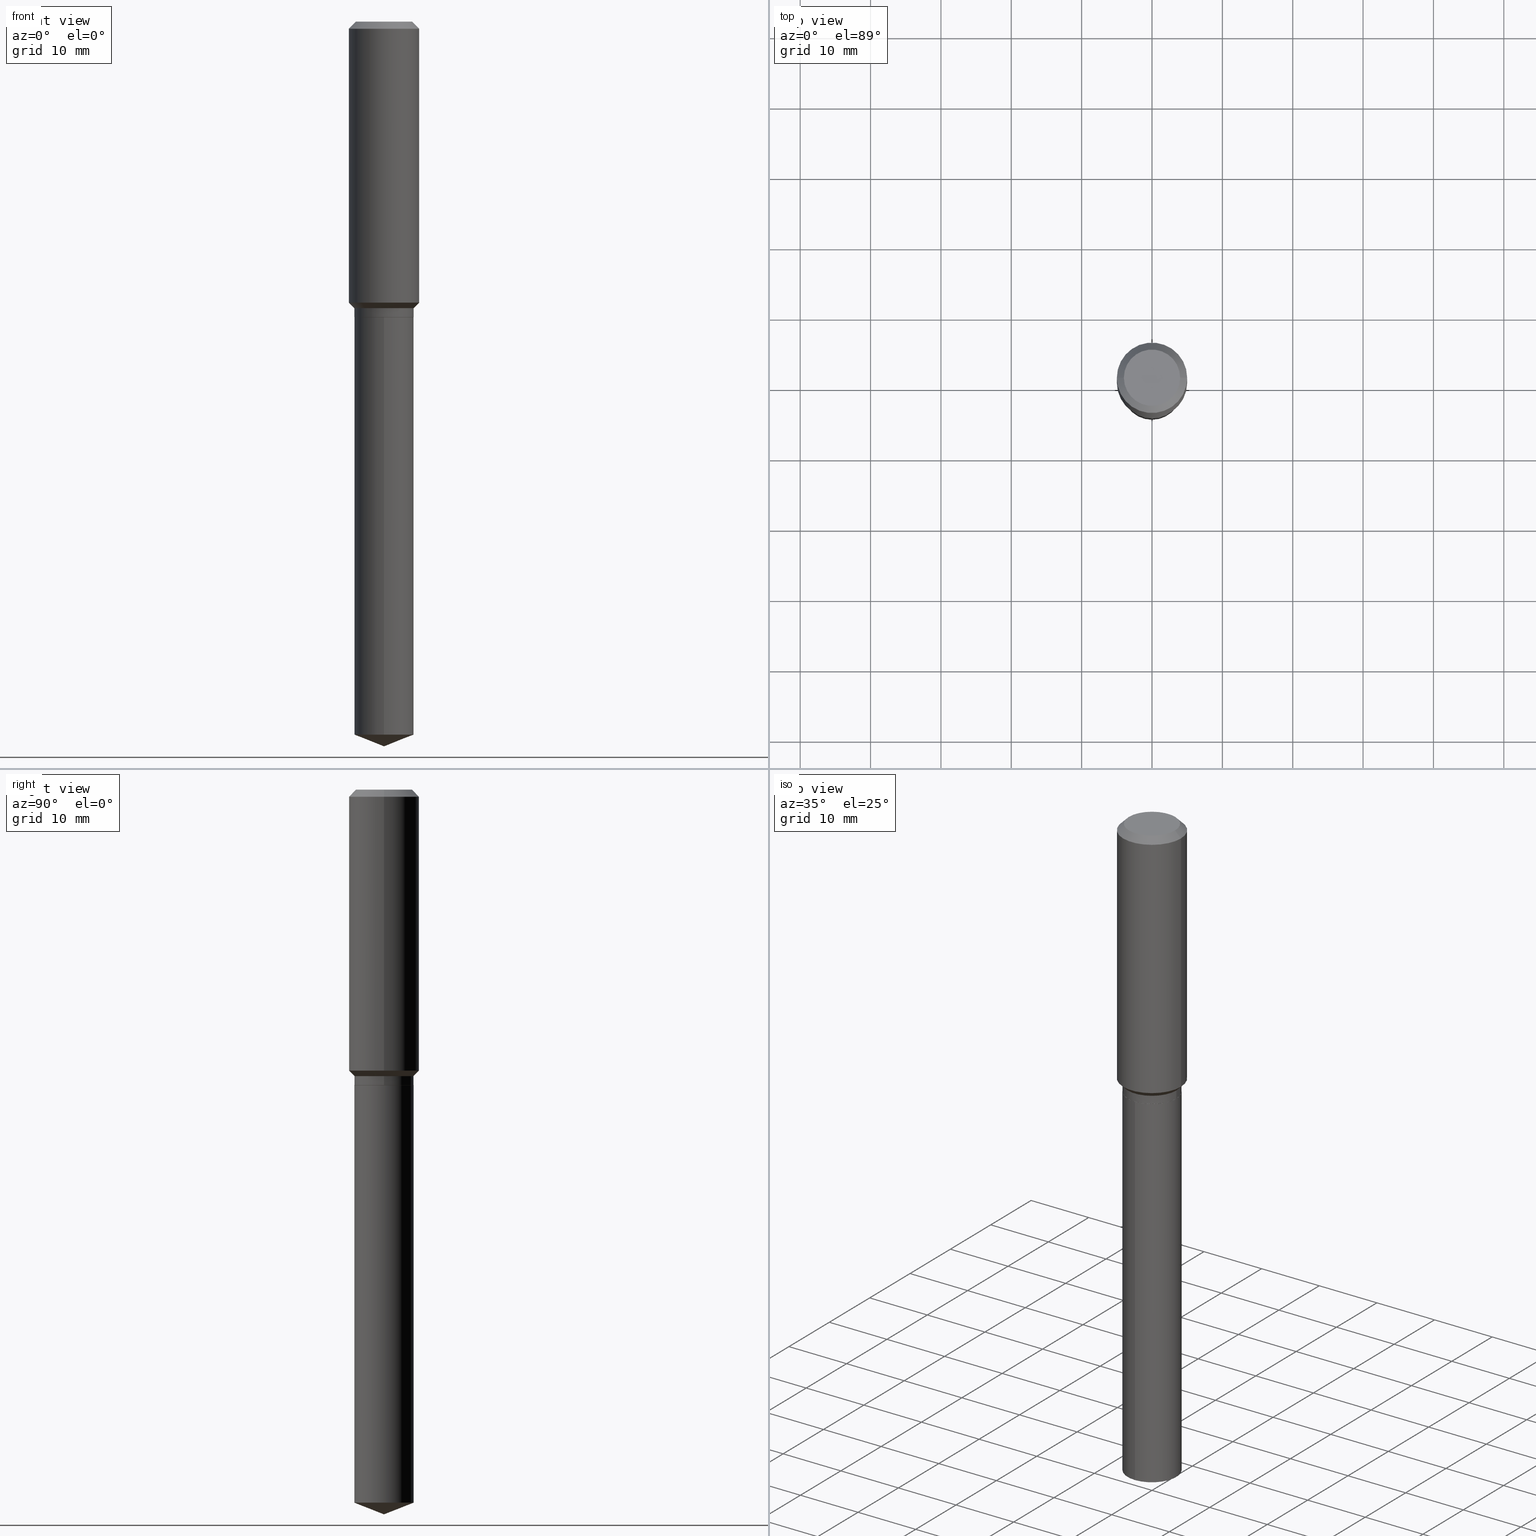
[diagram: canonical four-view strip — front | top / right | iso, engineering-drawing reading convention]
A machine part, canonical four-view strip (front | top / right | iso — engineering-drawing reading convention). The complete STEP part file that produces these views, byte-faithful:
ISO-10303-21;
HEADER;
FILE_DESCRIPTION (( 'STEP AP203' ),
    '1' );
FILE_NAME ('56453.STEP',
    '2024-04-24T18:00:01',
    ( '' ),
    ( '' ),
    'SwSTEP 2.0',
    'SolidWorks 2023',
    '' );
FILE_SCHEMA (( 'CONFIG_CONTROL_DESIGN' ));
ENDSEC;

DATA;
#1 = DIRECTION ( 'NONE',  ( 1.000000000000000000, -6.982962677686265133E-15, 0.000000000000000000 ) ) ;
#2 = AXIS2_PLACEMENT_3D ( 'NONE', #102, #249, #408 ) ;
#3 = AXIS2_PLACEMENT_3D ( 'NONE', #392, #313, #397 ) ;
#4 = COORDINATED_UNIVERSAL_TIME_OFFSET ( 5, 0, .BEHIND. ) ;
#5 = FACE_OUTER_BOUND ( 'NONE', #363, .T. ) ;
#6 = EDGE_CURVE ( 'NONE', #180, #375, #241, .T. ) ;
#7 = PERSON_AND_ORGANIZATION ( #345, #96 ) ;
#8 = FACE_OUTER_BOUND ( 'NONE', #165, .T. ) ;
#9 = DIRECTION ( 'NONE',  ( -2.445468806185136597E-29, 3.491481338843145583E-15, 1.000000000000000000 ) ) ;
#10 = AXIS2_PLACEMENT_3D ( 'NONE', #237, #12, #307 ) ;
#11 = PERSON_AND_ORGANIZATION ( #345, #96 ) ;
#12 = DIRECTION ( 'NONE',  ( -2.445468806185136597E-29, 3.491481338843145583E-15, 1.000000000000000000 ) ) ;
#13 = ORIENTED_EDGE ( 'NONE', *, *, #260, .F. ) ;
#14 = ADVANCED_FACE ( 'NONE', ( #183 ), #447, .F. ) ;
#15 = CARTESIAN_POINT ( 'NONE',  ( 0.1968500000000002192, -6.864426886232561212E-15, -1.572349999999999692 ) ) ;
#16 = FACE_OUTER_BOUND ( 'NONE', #238, .T. ) ;
#17 = EDGE_CURVE ( 'NONE', #94, #472, #143, .T. ) ;
#18 = EDGE_LOOP ( 'NONE', ( #56, #413, #437 ) ) ;
#19 = CONICAL_SURFACE ( 'NONE', #288, 0.1968500000000000527, 0.7853981633974453924 ) ;
#20 = LOCAL_TIME ( 14, 0, 1.000000000000000000, #381 ) ;
#21 = CARTESIAN_POINT ( 'NONE',  ( 4.042115389743411055E-29, -5.771069504973833690E-15, -1.652899999999999814 ) ) ;
#22 = ORIENTED_EDGE ( 'NONE', *, *, #214, .T. ) ;
#23 = EDGE_CURVE ( 'NONE', #472, #216, #147, .T. ) ;
#24 = DIRECTION ( 'NONE',  ( -2.445468806185136877E-29, 3.491481338843145188E-15, 1.000000000000000000 ) ) ;
#25 = ORIENTED_EDGE ( 'NONE', *, *, #260, .T. ) ;
#26 = EDGE_LOOP ( 'NONE', ( #98, #137, #311, #202 ) ) ;
#27 = EDGE_CURVE ( 'NONE', #472, #94, #338, .T. ) ;
#28 = CC_DESIGN_APPROVAL ( #428, ( #135 ) ) ;
#29 = CARTESIAN_POINT ( 'NONE',  ( 4.043338124146504977E-29, -5.772815245643255982E-15, -1.653399999999999981 ) ) ;
#30 = VERTEX_POINT ( 'NONE', #451 ) ;
#31 = ORIENTED_EDGE ( 'NONE', *, *, #465, .T. ) ;
#32 = VERTEX_POINT ( 'NONE', #245 ) ;
#33 = VECTOR ( 'NONE', #299, 39.37007874015748143 ) ;
#34 = VERTEX_POINT ( 'NONE', #62 ) ;
#35 = DIRECTION ( 'NONE',  ( 1.000000000000000000, -6.982962677686265133E-15, 0.000000000000000000 ) ) ;
#36 = LINE ( 'NONE', #189, #72 ) ;
#37 = CALENDAR_DATE ( 2024, 24, 4 ) ;
#38 = EDGE_CURVE ( 'NONE', #70, #375, #287, .T. ) ;
#39 = DIRECTION ( 'NONE',  ( -2.445540233102860963E-29, 3.491379051431596489E-15, 1.000000000000000000 ) ) ;
#40 = CIRCLE ( 'NONE', #430, 0.1660000000000000087 ) ;
#41 = AXIS2_PLACEMENT_3D ( 'NONE', #173, #442, #253 ) ;
#42 = COORDINATED_UNIVERSAL_TIME_OFFSET ( 5, 0, .BEHIND. ) ;
#43 = DIRECTION ( 'NONE',  ( -0.7071067811864026886, 7.493145998869830357E-15, 0.7071067811866923458 ) ) ;
#44 = FACE_OUTER_BOUND ( 'NONE', #479, .T. ) ;
#45 = APPROVAL_ROLE ( '' ) ;
#46 = DIRECTION ( 'NONE',  ( 1.000000000000000000, -6.982962677686265922E-15, 4.876223630392693006E-29 ) ) ;
#47 = EDGE_LOOP ( 'NONE', ( #440, #236, #291, #276 ) ) ;
#48 = CIRCLE ( 'NONE', #322, 0.1655000000000000082 ) ;
#49 = VECTOR ( 'NONE', #272, 39.37007874015748143 ) ;
#50 = DIRECTION ( 'NONE',  ( -2.445540233102860963E-29, 3.491379051431596489E-15, 1.000000000000000000 ) ) ;
#51 = VERTEX_POINT ( 'NONE', #247 ) ;
#52 = FACE_OUTER_BOUND ( 'NONE', #26, .T. ) ;
#53 = ORIENTED_EDGE ( 'NONE', *, *, #192, .F. ) ;
#54 = CARTESIAN_POINT ( 'NONE',  ( 1.179500941361863992E-15, 0.1659999999999860754, -3.989610861047919954 ) ) ;
#55 = PRODUCT_DEFINITION ( 'UNKNOWN', '', #135, #330 ) ;
#56 = ORIENTED_EDGE ( 'NONE', *, *, #403, .F. ) ;
#57 = CONICAL_SURFACE ( 'NONE', #95, 0.1660000000000000087, 0.7853981633974510546 ) ;
#58 = CC_DESIGN_SECURITY_CLASSIFICATION ( #204, ( #135 ) ) ;
#59 = DIRECTION ( 'NONE',  ( 1.000000000000000000, -6.982962677686266711E-15, 4.876176775795935793E-29 ) ) ;
#60 = ORIENTED_EDGE ( 'NONE', *, *, #38, .F. ) ;
#61 = FACE_OUTER_BOUND ( 'NONE', #18, .T. ) ;
#62 = CARTESIAN_POINT ( 'NONE',  ( 0.1659999999999999809, -6.930241309469754658E-15, -1.652899999999999814 ) ) ;
#63 = EDGE_CURVE ( 'NONE', #308, #123, #443, .T. ) ;
#64 = DIRECTION ( 'NONE',  ( -2.445468806185136597E-29, 3.491481338843145583E-15, 1.000000000000000000 ) ) ;
#65 = ORIENTED_EDGE ( 'NONE', *, *, #214, .F. ) ;
#66 = AXIS2_PLACEMENT_3D ( 'NONE', #378, #9, #35 ) ;
#67 = AXIS2_PLACEMENT_3D ( 'NONE', #446, #325, #105 ) ;
#68 =( NAMED_UNIT ( * ) SI_UNIT ( $, .STERADIAN. ) SOLID_ANGLE_UNIT ( ) );
#69 = DIRECTION ( 'NONE',  ( -2.445468806185136597E-29, 3.491481338843145583E-15, 1.000000000000000000 ) ) ;
#70 = VERTEX_POINT ( 'NONE', #255 ) ;
#71 = ORIENTED_EDGE ( 'NONE', *, *, #292, .F. ) ;
#72 = VECTOR ( 'NONE', #191, 39.37007874015748143 ) ;
#73 = CONICAL_SURFACE ( 'NONE', #438, 0.1968500000000000527, 0.7853981633974453924 ) ;
#74 = CARTESIAN_POINT ( 'NONE',  ( 1.179500941361806799E-15, 0.1659999999999942355, -1.653400000000000203 ) ) ;
#75 = DIRECTION ( 'NONE',  ( -2.445540233102860683E-29, 3.491379051431596884E-15, 1.000000000000000000 ) ) ;
#76 = EDGE_CURVE ( 'NONE', #51, #32, #48, .T. ) ;
#77 = DIRECTION ( 'NONE',  ( -2.445468806185136597E-29, 3.491481338843145583E-15, 1.000000000000000000 ) ) ;
#78 = PERSON_AND_ORGANIZATION_ROLE ( 'creator' ) ;
#79 = LINE ( 'NONE', #416, #212 ) ;
#80 = CLOSED_SHELL ( 'NONE', ( #356, #489, #224, #336, #156 ) ) ;
#81 = LOCAL_TIME ( 14, 0, 1.000000000000000000, #42 ) ;
#82 = DIRECTION ( 'NONE',  ( 1.000000000000000000, -6.982962677686266711E-15, 4.876176775795935793E-29 ) ) ;
#83 = DIRECTION ( 'NONE',  ( -1.000000000000000000, 6.982962677686266711E-15, 0.000000000000000000 ) ) ;
#84 = EDGE_CURVE ( 'NONE', #216, #375, #36, .T. ) ;
#85 = APPROVAL_ROLE ( '' ) ;
#86 = FACE_OUTER_BOUND ( 'NONE', #427, .T. ) ;
#87 = ORIENTED_EDGE ( 'NONE', *, *, #185, .F. ) ;
#88 = AXIS2_PLACEMENT_3D ( 'NONE', #117, #77, #82 ) ;
#89 = FACE_OUTER_BOUND ( 'NONE', #320, .T. ) ;
#90 = EDGE_CURVE ( 'NONE', #92, #180, #79, .T. ) ;
#91 = DIRECTION ( 'NONE',  ( -2.445540233102860963E-29, 3.491379051431596489E-15, 1.000000000000000000 ) ) ;
#92 = VERTEX_POINT ( 'NONE', #186 ) ;
#93 = DIRECTION ( 'NONE',  ( -2.445468806185136597E-29, 3.491481338843145583E-15, 1.000000000000000000 ) ) ;
#94 = VERTEX_POINT ( 'NONE', #454 ) ;
#95 = AXIS2_PLACEMENT_3D ( 'NONE', #115, #152, #261 ) ;
#96 = ORGANIZATION ( 'UNSPECIFIED', 'UNSPECIFIED', '' ) ;
#97 = DIRECTION ( 'NONE',  ( 1.000000000000000000, -6.982962677686269077E-15, 0.000000000000000000 ) ) ;
#98 = ORIENTED_EDGE ( 'NONE', *, *, #90, .F. ) ;
#99 = APPLICATION_PROTOCOL_DEFINITION ( 'international standard', 'config_control_design', 1994, #101 ) ;
#100 = DIRECTION ( 'NONE',  ( 1.000000000000000000, -6.982962677686266711E-15, 0.000000000000000000 ) ) ;
#101 = APPLICATION_CONTEXT ( 'configuration controlled 3d designs of mechanical parts and assemblies' ) ;
#102 = CARTESIAN_POINT ( 'NONE',  ( 3.920575590076010242E-29, -5.597542882433329924E-15, -1.603199999999999736 ) ) ;
#103 = EDGE_CURVE ( 'NONE', #396, #171, #414, .T. ) ;
#104 = CIRCLE ( 'NONE', #407, 0.1968500000000000527 ) ;
#105 = DIRECTION ( 'NONE',  ( 1.000000000000000000, -6.982962677686265922E-15, 4.876223630392693006E-29 ) ) ;
#106 = ORIENTED_EDGE ( 'NONE', *, *, #326, .F. ) ;
#107 = LINE ( 'NONE', #475, #167 ) ;
#108 = ORIENTED_EDGE ( 'NONE', *, *, #84, .F. ) ;
#109 = CARTESIAN_POINT ( 'NONE',  ( 0.000000000000000000, 0.000000000000000000, 0.000000000000000000 ) ) ;
#110 = AXIS2_PLACEMENT_3D ( 'NONE', #464, #93, #426 ) ;
#111 = DIRECTION ( 'NONE',  ( -2.445540233102860963E-29, 3.491379051431596489E-15, 1.000000000000000000 ) ) ;
#112 = EDGE_CURVE ( 'NONE', #279, #180, #457, .T. ) ;
#113 = DIRECTION ( 'NONE',  ( 6.982962677686265922E-15, 1.000000000000000000, -3.491379051431596884E-15 ) ) ;
#114 = DATE_AND_TIME ( #116, #144 ) ;
#115 = CARTESIAN_POINT ( 'NONE',  ( 3.920575590076010242E-29, -5.597542882433329924E-15, -1.603199999999999736 ) ) ;
#116 = CALENDAR_DATE ( 2024, 24, 4 ) ;
#117 = CARTESIAN_POINT ( 'NONE',  ( 0.000000000000000000, 0.000000000000000000, 0.000000000000000000 ) ) ;
#118 = DATE_AND_TIME ( #193, #213 ) ;
#119 = CC_DESIGN_PERSON_AND_ORGANIZATION_ASSIGNMENT ( #348, #298, ( #135 ) ) ;
#120 = CYLINDRICAL_SURFACE ( 'NONE', #257, 0.1660000000000000087 ) ;
#121 = APPROVAL_DATE_TIME ( #114, #277 ) ;
#122 = DIRECTION ( 'NONE',  ( -2.445468806185136597E-29, 3.491481338843145583E-15, 1.000000000000000000 ) ) ;
#123 = VERTEX_POINT ( 'NONE', #264 ) ;
#124 = CARTESIAN_POINT ( 'NONE',  ( 4.043338124146503856E-29, -5.772815245643255193E-15, -1.653399999999999537 ) ) ;
#125 = ORIENTED_EDGE ( 'NONE', *, *, #63, .F. ) ;
#126 = ADVANCED_FACE ( 'NONE', ( #194 ), #57, .T. ) ;
#127 = AXIS2_PLACEMENT_3D ( 'NONE', #355, #239, #163 ) ;
#128 = ADVANCED_BREP_SHAPE_REPRESENTATION ( '56453', ( #420, #441, #263 ), #487 ) ;
#129 = DIRECTION ( 'NONE',  ( -2.445468806185136597E-29, 3.491481338843145583E-15, 1.000000000000000000 ) ) ;
#130 = ORIENTED_EDGE ( 'NONE', *, *, #172, .F. ) ;
#131 = DIRECTION ( 'NONE',  ( -6.982962677686266711E-15, -1.000000000000000000, 3.291383124896702687E-15 ) ) ;
#132 = ORIENTED_EDGE ( 'NONE', *, *, #76, .F. ) ;
#133 = FACE_OUTER_BOUND ( 'NONE', #361, .T. ) ;
#134 = ORIENTED_EDGE ( 'NONE', *, *, #409, .F. ) ;
#135 = PRODUCT_DEFINITION_FORMATION_WITH_SPECIFIED_SOURCE ( 'ANY', '', #227, .NOT_KNOWN. ) ;
#136 = DIRECTION ( 'NONE',  ( 1.000000000000000000, 0.000000000000000000, 0.000000000000000000 ) ) ;
#137 = ORIENTED_EDGE ( 'NONE', *, *, #370, .F. ) ;
#138 = FACE_OUTER_BOUND ( 'NONE', #374, .T. ) ;
#139 = ORIENTED_EDGE ( 'NONE', *, *, #6, .F. ) ;
#140 = CARTESIAN_POINT ( 'NONE',  ( -0.1660000000000000087, -4.504805252341815634E-15, -1.603199999999999736 ) ) ;
#141 = ORIENTED_EDGE ( 'NONE', *, *, #6, .T. ) ;
#142 = CC_DESIGN_PERSON_AND_ORGANIZATION_ASSIGNMENT ( #246, #485, ( #227 ) ) ;
#143 = CIRCLE ( 'NONE', #2, 0.1660000000000000087 ) ;
#144 = LOCAL_TIME ( 14, 0, 1.000000000000000000, #230 ) ;
#145 = APPLICATION_PROTOCOL_DEFINITION ( 'international standard', 'config_control_design', 1994, #424 ) ;
#146 = CARTESIAN_POINT ( 'NONE',  ( -0.1660000000000000087, -4.418041941071563357E-15, -1.603199999999999736 ) ) ;
#147 = LINE ( 'NONE', #146, #203 ) ;
#148 = ADVANCED_FACE ( 'NONE', ( #8 ), #341, .T. ) ;
#149 = DIRECTION ( 'NONE',  ( 0.7071067811865493491, -2.468850131082277177E-15, 0.7071067811865454633 ) ) ;
#150 = AXIS2_PLACEMENT_3D ( 'NONE', #158, #111, #304 ) ;
#151 = CC_DESIGN_APPROVAL ( #306, ( #55 ) ) ;
#152 = DIRECTION ( 'NONE',  ( -2.445468806185136597E-29, 3.491481338843145583E-15, 1.000000000000000000 ) ) ;
#153 = APPROVAL_DATE_TIME ( #118, #428 ) ;
#154 = CARTESIAN_POINT ( 'NONE',  ( 1.179500941361864189E-15, 0.1659999999999942355, -1.653400000000000203 ) ) ;
#155 = CARTESIAN_POINT ( 'NONE',  ( 4.043338124146503856E-29, -5.772815245643255193E-15, -1.653399999999999537 ) ) ;
#156 = ADVANCED_FACE ( 'NONE', ( #5 ), #258, .F. ) ;
#157 = AXIS2_PLACEMENT_3D ( 'NONE', #109, #335, #419 ) ;
#158 = CARTESIAN_POINT ( 'NONE',  ( 9.756635777851070413E-29, -1.392941290563293579E-14, -3.989610861047919510 ) ) ;
#159 = PRODUCT_DEFINITION_SHAPE ( 'NONE', 'NONE',  #55 ) ;
#160 = CALENDAR_DATE ( 2024, 24, 4 ) ;
#161 = CARTESIAN_POINT ( 'NONE',  ( -0.1968500000000000527, -1.414941776376378819E-15, -0.03937000000000027283 ) ) ;
#162 = ORIENTED_EDGE ( 'NONE', *, *, #379, .F. ) ;
#163 = DIRECTION ( 'NONE',  ( 1.000000000000000000, -6.982962677686268288E-15, 0.000000000000000000 ) ) ;
#164 = PRODUCT_RELATED_PRODUCT_CATEGORY ( 'detail', '', ( #227 ) ) ;
#165 = EDGE_LOOP ( 'NONE', ( #206, #217, #318, #215 ) ) ;
#166 = CARTESIAN_POINT ( 'NONE',  ( 4.043338124146503856E-29, -5.772815245643255193E-15, -1.653399999999999537 ) ) ;
#167 = VECTOR ( 'NONE', #210, 39.37007874015748143 ) ;
#168 = LINE ( 'NONE', #395, #281 ) ;
#169 = ORIENTED_EDGE ( 'NONE', *, *, #103, .T. ) ;
#170 = CARTESIAN_POINT ( 'NONE',  ( 9.916667716379337497E-29, -1.415754205355512367E-14, -4.054999999999999716 ) ) ;
#171 = VERTEX_POINT ( 'NONE', #154 ) ;
#172 = EDGE_CURVE ( 'NONE', #375, #180, #104, .T. ) ;
#173 = CARTESIAN_POINT ( 'NONE',  ( 0.000000000000000000, 0.000000000000000000, 0.000000000000000000 ) ) ;
#174 = ORIENTED_EDGE ( 'NONE', *, *, #23, .T. ) ;
#175 = CLOSED_SHELL ( 'NONE', ( #481, #297, #333, #316, #207, #148, #126, #458, #388, #445, #14, #178 ) ) ;
#176 = ORIENTED_EDGE ( 'NONE', *, *, #292, .T. ) ;
#177 = CARTESIAN_POINT ( 'NONE',  ( 9.916665645232101661E-29, -1.415754205355512367E-14, -4.054999999999999716 ) ) ;
#178 = ADVANCED_FACE ( 'NONE', ( #259 ), #399, .T. ) ;
#179 = DIRECTION ( 'NONE',  ( 1.000000000000000000, -6.982962677686265922E-15, 4.876176775795935793E-29 ) ) ;
#180 = VERTEX_POINT ( 'NONE', #296 ) ;
#181 = CONICAL_SURFACE ( 'NONE', #461, 99.94676754583913691, 1.195550537616116626 ) ;
#182 = AXIS2_PLACEMENT_3D ( 'NONE', #319, #406, #284 ) ;
#183 = FACE_OUTER_BOUND ( 'NONE', #211, .T. ) ;
#184 = LINE ( 'NONE', #423, #187 ) ;
#185 = EDGE_CURVE ( 'NONE', #51, #30, #490, .T. ) ;
#186 = CARTESIAN_POINT ( 'NONE',  ( 0.1574800000000000089, -1.284169937930321386E-15, 3.855188123724205385E-18 ) ) ;
#187 = VECTOR ( 'NONE', #418, 39.37007874015748143 ) ;
#188 = AXIS2_PLACEMENT_3D ( 'NONE', #432, #129, #46 ) ;
#189 = CARTESIAN_POINT ( 'NONE',  ( -0.1968500000000001082, 1.398703375343757985E-15, -9.682923725166787881E-30 ) ) ;
#190 = DATE_AND_TIME ( #160, #81 ) ;
#191 = DIRECTION ( 'NONE',  ( -2.445468806185136877E-29, 3.491481338843145188E-15, 1.000000000000000000 ) ) ;
#192 = EDGE_CURVE ( 'NONE', #32, #34, #184, .T. ) ;
#193 = CALENDAR_DATE ( 2024, 24, 4 ) ;
#194 = FACE_OUTER_BOUND ( 'NONE', #411, .T. ) ;
#195 = CARTESIAN_POINT ( 'NONE',  ( 0.1660000000000000087, -1.159171804495920377E-15, 8.094453447821253584E-30 ) ) ;
#196 = APPROVAL_PERSON_ORGANIZATION ( #7, #277, #45 ) ;
#197 = DIRECTION ( 'NONE',  ( -2.445540233102860963E-29, 3.491379051431596489E-15, 1.000000000000000000 ) ) ;
#198 = ORIENTED_EDGE ( 'NONE', *, *, #465, .F. ) ;
#199 = DIRECTION ( 'NONE',  ( -6.982962677686266711E-15, -1.000000000000000000, 3.291383124896702687E-15 ) ) ;
#200 = ORIENTED_EDGE ( 'NONE', *, *, #417, .F. ) ;
#201 = DIRECTION ( 'NONE',  ( -6.497071151882111948E-15, -0.9304175679820234635, 0.3665012267242997446 ) ) ;
#202 = ORIENTED_EDGE ( 'NONE', *, *, #172, .T. ) ;
#203 = VECTOR ( 'NONE', #252, 39.37007874015748854 ) ;
#204 = SECURITY_CLASSIFICATION ( '', '', #421 ) ;
#205 = CARTESIAN_POINT ( 'NONE',  ( -1.159171804495822755E-15, -0.1660000000000139420, -3.989610861047919066 ) ) ;
#206 = ORIENTED_EDGE ( 'NONE', *, *, #455, .F. ) ;
#207 = ADVANCED_FACE ( 'NONE', ( #222 ), #460, .T. ) ;
#208 = CARTESIAN_POINT ( 'NONE',  ( -0.1968500000000000527, 1.237136582792286422E-15, -0.03937000000000027283 ) ) ;
#209 = DIMENSIONAL_EXPONENTS ( 1.000000000000000000, 0.000000000000000000, 0.000000000000000000, 0.000000000000000000, 0.000000000000000000, 0.000000000000000000, 0.000000000000000000 ) ;
#210 = DIRECTION ( 'NONE',  ( -2.445468806185136877E-29, 3.491481338843145188E-15, 1.000000000000000000 ) ) ;
#211 = EDGE_LOOP ( 'NONE', ( #106, #132 ) ) ;
#212 = VECTOR ( 'NONE', #343, 39.37007874015748143 ) ;
#213 = LOCAL_TIME ( 14, 0, 1.000000000000000000, #4 ) ;
#214 = EDGE_CURVE ( 'NONE', #94, #279, #382, .T. ) ;
#215 = ORIENTED_EDGE ( 'NONE', *, *, #27, .F. ) ;
#216 = VERTEX_POINT ( 'NONE', #380 ) ;
#217 = ORIENTED_EDGE ( 'NONE', *, *, #409, .T. ) ;
#218 = VECTOR ( 'NONE', #24, 39.37007874015748143 ) ;
#219 = DIRECTION ( 'NONE',  ( 2.445540233102860402E-29, -3.491379051431596884E-15, -1.000000000000000000 ) ) ;
#220 = CARTESIAN_POINT ( 'NONE',  ( 9.627810689950950651E-31, -1.374596203102555808E-16, -0.03937000000000027283 ) ) ;
#221 = DIRECTION ( 'NONE',  ( -2.445540233102860963E-29, 3.491379051431596489E-15, 1.000000000000000000 ) ) ;
#222 = FACE_OUTER_BOUND ( 'NONE', #47, .T. ) ;
#223 = PERSON_AND_ORGANIZATION ( #345, #96 ) ;
#224 = ADVANCED_FACE ( 'NONE', ( #44 ), #181, .T. ) ;
#225 = APPROVAL_PERSON_ORGANIZATION ( #290, #306, #404 ) ;
#226 = DIRECTION ( 'NONE',  ( -2.445468806185136597E-29, 3.491481338843145583E-15, 1.000000000000000000 ) ) ;
#227 = PRODUCT ( '56453', '56453', '', ( #372 ) ) ;
#228 = DIRECTION ( 'NONE',  ( -6.982962677686265922E-15, -1.000000000000000000, 3.498627837350033410E-15 ) ) ;
#229 = LINE ( 'NONE', #170, #49 ) ;
#230 = COORDINATED_UNIVERSAL_TIME_OFFSET ( 5, 0, .BEHIND. ) ;
#231 = VECTOR ( 'NONE', #43, 39.37007874015748143 ) ;
#232 = DIRECTION ( 'NONE',  ( -1.000000000000000000, 6.982962677686266711E-15, 0.000000000000000000 ) ) ;
#233 = CONICAL_SURFACE ( 'NONE', #243, 0.1655000000000000082, 0.7853981633972434429 ) ;
#234 = CC_DESIGN_DATE_AND_TIME_ASSIGNMENT ( #309, #265, ( #204 ) ) ;
#235 = LINE ( 'NONE', #195, #218 ) ;
#236 = ORIENTED_EDGE ( 'NONE', *, *, #455, .T. ) ;
#237 = CARTESIAN_POINT ( 'NONE',  ( 3.845132877405198741E-29, -5.489830683130018815E-15, -1.572349999999999692 ) ) ;
#238 = EDGE_LOOP ( 'NONE', ( #327, #169, #71, #125 ) ) ;
#239 = DIRECTION ( 'NONE',  ( -2.445468806185136597E-29, 3.491481338843145583E-15, 1.000000000000000000 ) ) ;
#240 = EDGE_CURVE ( 'NONE', #308, #396, #280, .T. ) ;
#241 = CIRCLE ( 'NONE', #312, 0.1968500000000000527 ) ;
#242 = EDGE_LOOP ( 'NONE', ( #390, #469, #482, #13 ) ) ;
#243 = AXIS2_PLACEMENT_3D ( 'NONE', #29, #244, #412 ) ;
#244 = DIRECTION ( 'NONE',  ( -2.445468806185136597E-29, 3.491481338843145583E-15, 1.000000000000000000 ) ) ;
#245 = CARTESIAN_POINT ( 'NONE',  ( 0.1655000000000000082, -6.928495568800333154E-15, -1.653399999999999981 ) ) ;
#246 = PERSON_AND_ORGANIZATION ( #345, #96 ) ;
#247 = CARTESIAN_POINT ( 'NONE',  ( -0.1655000000000000082, -4.594217790786179112E-15, -1.653399999999999981 ) ) ;
#248 = CC_DESIGN_DATE_AND_TIME_ASSIGNMENT ( #190, #305, ( #55 ) ) ;
#249 = DIRECTION ( 'NONE',  ( -2.445468806185136597E-29, 3.491481338843145583E-15, 1.000000000000000000 ) ) ;
#250 = CIRCLE ( 'NONE', #295, 0.1659999999999999809 ) ;
#251 = CARTESIAN_POINT ( 'NONE',  ( -8.636456399151639523E-28, 1.232981569910369115E-13, 35.31507874015748172 ) ) ;
#252 = DIRECTION ( 'NONE',  ( -0.7071067811865493491, 7.493145998870358893E-15, 0.7071067811865454633 ) ) ;
#253 = DIRECTION ( 'NONE',  ( 1.000000000000000000, -6.982962677686266711E-15, 4.876176775795935793E-29 ) ) ;
#254 = EDGE_LOOP ( 'NONE', ( #449, #174, #200, #65 ) ) ;
#255 = CARTESIAN_POINT ( 'NONE',  ( -0.1574800000000000089, 1.168406772637159815E-15, 3.855188123707939751E-18 ) ) ;
#256 = VECTOR ( 'NONE', #283, 39.37007874015748143 ) ;
#257 = AXIS2_PLACEMENT_3D ( 'NONE', #124, #462, #266 ) ;
#258 = PLANE ( 'NONE',  #331 ) ;
#259 = FACE_OUTER_BOUND ( 'NONE', #328, .T. ) ;
#260 = EDGE_CURVE ( 'NONE', #171, #123, #40, .T. ) ;
#261 = DIRECTION ( 'NONE',  ( 1.000000000000000000, -6.982962677686268288E-15, 0.000000000000000000 ) ) ;
#262 = VECTOR ( 'NONE', #484, 39.37007874015748143 ) ;
#263 = AXIS2_PLACEMENT_3D ( 'NONE', #483, #369, #136 ) ;
#264 = CARTESIAN_POINT ( 'NONE',  ( -1.159171804495879750E-15, -0.1660000000000057818, -1.653399999999999093 ) ) ;
#265 = DATE_TIME_ROLE ( 'classification_date' ) ;
#266 = DIRECTION ( 'NONE',  ( -6.982962677686266711E-15, -1.000000000000000000, 3.291383124896702687E-15 ) ) ;
#267 = SHAPE_DEFINITION_REPRESENTATION ( #159, #128 ) ;
#268 = CARTESIAN_POINT ( 'NONE',  ( 9.627810689950950651E-31, -1.374596203102555808E-16, -0.03937000000000027283 ) ) ;
#269 = CC_DESIGN_PERSON_AND_ORGANIZATION_ASSIGNMENT ( #11, #78, ( #55 ) ) ;
#270 = ORIENTED_EDGE ( 'NONE', *, *, #450, .F. ) ;
#271 = CIRCLE ( 'NONE', #383, 0.1660000000000000087 ) ;
#272 = DIRECTION ( 'NONE',  ( 6.611014441532059489E-15, 0.9304175679820261280, 0.3665012267242931943 ) ) ;
#273 = AXIS2_PLACEMENT_3D ( 'NONE', #21, #278, #436 ) ;
#274 = ORIENTED_EDGE ( 'NONE', *, *, #112, .T. ) ;
#275 = DIRECTION ( 'NONE',  ( 2.445468806185136597E-29, -3.491481338843145583E-15, -1.000000000000000000 ) ) ;
#276 = ORIENTED_EDGE ( 'NONE', *, *, #391, .F. ) ;
#277 = APPROVAL ( #459, 'UNSPECIFIED' ) ;
#278 = DIRECTION ( 'NONE',  ( -2.445468806185136597E-29, 3.491481338843145583E-15, 1.000000000000000000 ) ) ;
#279 = VERTEX_POINT ( 'NONE', #15 ) ;
#280 = CIRCLE ( 'NONE', #150, 0.1660000000000000087 ) ;
#281 = VECTOR ( 'NONE', #201, 39.37007874015748854 ) ;
#282 = LENGTH_MEASURE_WITH_UNIT ( LENGTH_MEASURE( 0.02539999999999999897 ), #321 );
#283 = DIRECTION ( 'NONE',  ( -0.7071067811865454633, 2.468850131082235367E-15, -0.7071067811865495711 ) ) ;
#284 = DIRECTION ( 'NONE',  ( -1.000000000000000000, 6.982962677686265922E-15, -4.876176775795935793E-29 ) ) ;
#285 = ORIENTED_EDGE ( 'NONE', *, *, #185, .T. ) ;
#286 = FACE_OUTER_BOUND ( 'NONE', #334, .T. ) ;
#287 = LINE ( 'NONE', #208, #256 ) ;
#288 = AXIS2_PLACEMENT_3D ( 'NONE', #434, #275, #232 ) ;
#289 = CIRCLE ( 'NONE', #67, 0.1574800000000000089 ) ;
#290 = PERSON_AND_ORGANIZATION ( #345, #96 ) ;
#291 = ORIENTED_EDGE ( 'NONE', *, *, #17, .F. ) ;
#292 = EDGE_CURVE ( 'NONE', #123, #171, #271, .T. ) ;
#293 = CARTESIAN_POINT ( 'NONE',  ( 3.920575590076010242E-29, -5.597542882433329924E-15, -1.603199999999999736 ) ) ;
#294 = CARTESIAN_POINT ( 'NONE',  ( -8.636456399151639523E-28, 1.232981569910369115E-13, 35.31507874015748172 ) ) ;
#295 = AXIS2_PLACEMENT_3D ( 'NONE', #478, #64, #97 ) ;
#296 = CARTESIAN_POINT ( 'NONE',  ( 0.1968500000000000527, -1.512055823412797583E-15, -0.03937000000000027283 ) ) ;
#297 = ADVANCED_FACE ( 'NONE', ( #86 ), #19, .T. ) ;
#298 = PERSON_AND_ORGANIZATION_ROLE ( 'design_supplier' ) ;
#299 = DIRECTION ( 'NONE',  ( -2.445468806185136877E-29, 3.491481338843145188E-15, 1.000000000000000000 ) ) ;
#300 = DIRECTION ( 'NONE',  ( 1.000000000000000000, -6.982962677686266711E-15, 0.000000000000000000 ) ) ;
#301 = APPROVAL_DATE_TIME ( #352, #306 ) ;
#302 = VECTOR ( 'NONE', #75, 39.37007874015748143 ) ;
#303 = AXIS2_PLACEMENT_3D ( 'NONE', #166, #50, #471 ) ;
#304 = DIRECTION ( 'NONE',  ( -6.982962677686266711E-15, -1.000000000000000000, 3.291383124896702687E-15 ) ) ;
#305 = DATE_TIME_ROLE ( 'creation_date' ) ;
#306 = APPROVAL ( #448, 'UNSPECIFIED' ) ;
#307 = DIRECTION ( 'NONE',  ( 1.000000000000000000, -6.982962677686265922E-15, 0.000000000000000000 ) ) ;
#308 = VERTEX_POINT ( 'NONE', #205 ) ;
#309 = DATE_AND_TIME ( #463, #360 ) ;
#310 = CYLINDRICAL_SURFACE ( 'NONE', #340, 0.1968500000000001082 ) ;
#311 = ORIENTED_EDGE ( 'NONE', *, *, #38, .T. ) ;
#312 = AXIS2_PLACEMENT_3D ( 'NONE', #444, #364, #100 ) ;
#313 = DIRECTION ( 'NONE',  ( -2.445468806185136597E-29, 3.491481338843145583E-15, 1.000000000000000000 ) ) ;
#314 = CIRCLE ( 'NONE', #332, 0.1660000000000000087 ) ;
#315 = ORIENTED_EDGE ( 'NONE', *, *, #370, .T. ) ;
#316 = ADVANCED_FACE ( 'NONE', ( #350 ), #431, .T. ) ;
#317 = CARTESIAN_POINT ( 'NONE',  ( 9.756635777851070413E-29, -1.392941290563293579E-14, -3.989610861047919510 ) ) ;
#318 = ORIENTED_EDGE ( 'NONE', *, *, #391, .T. ) ;
#319 = CARTESIAN_POINT ( 'NONE',  ( -4.713871149261283817E-47, 6.730158695841841775E-33, 1.927594061857935365E-18 ) ) ;
#320 = EDGE_LOOP ( 'NONE', ( #433, #354, #139, #435 ) ) ;
#321 =( LENGTH_UNIT ( ) NAMED_UNIT ( * ) SI_UNIT ( $, .METRE. ) );
#322 = AXIS2_PLACEMENT_3D ( 'NONE', #387, #346, #1 ) ;
#323 = CARTESIAN_POINT ( 'NONE',  ( 2.137543109451043709E-29, -8.502022177803070157E-15, -1.653399999999999981 ) ) ;
#324 = CIRCLE ( 'NONE', #110, 0.1968500000000002192 ) ;
#325 = DIRECTION ( 'NONE',  ( -2.445468806185136597E-29, 3.491481338843145583E-15, 1.000000000000000000 ) ) ;
#326 = EDGE_CURVE ( 'NONE', #32, #51, #358, .T. ) ;
#327 = ORIENTED_EDGE ( 'NONE', *, *, #240, .T. ) ;
#328 = EDGE_LOOP ( 'NONE', ( #87, #398, #357, #134 ) ) ;
#329 = ORIENTED_EDGE ( 'NONE', *, *, #90, .T. ) ;
#330 = DESIGN_CONTEXT ( 'detailed design', #424, 'design' ) ;
#331 = AXIS2_PLACEMENT_3D ( 'NONE', #155, #219, #113 ) ;
#332 = AXIS2_PLACEMENT_3D ( 'NONE', #317, #91, #131 ) ;
#333 = ADVANCED_FACE ( 'NONE', ( #89 ), #310, .T. ) ;
#334 = EDGE_LOOP ( 'NONE', ( #315, #31 ) ) ;
#335 = DIRECTION ( 'NONE',  ( -2.445468806185136597E-29, 3.491481338843145583E-15, 1.000000000000000000 ) ) ;
#336 = ADVANCED_FACE ( 'NONE', ( #362 ), #120, .T. ) ;
#337 = CARTESIAN_POINT ( 'NONE',  ( 0.1968500000000001082, -1.374596203102542397E-15, 9.598753983154305062E-30 ) ) ;
#338 = CIRCLE ( 'NONE', #376, 0.1660000000000000087 ) ;
#339 = PERSON_AND_ORGANIZATION_ROLE ( 'creator' ) ;
#340 = AXIS2_PLACEMENT_3D ( 'NONE', #400, #122, #59 ) ;
#341 = CYLINDRICAL_SURFACE ( 'NONE', #157, 0.1660000000000000087 ) ;
#342 = APPROVAL_STATUS ( 'not_yet_approved' ) ;
#343 = DIRECTION ( 'NONE',  ( 0.7071067811865454633, -7.319954787623248157E-15, -0.7071067811865495711 ) ) ;
#344 = COORDINATED_UNIVERSAL_TIME_OFFSET ( 5, 0, .BEHIND. ) ;
#345 = PERSON ( 'UNSPECIFIED', 'UNSPECIFIED', 'UNSPECIFIED', ('UNSPECIFIED'), ('UNSPECIFIED'), ('UNSPECIFIED') ) ;
#346 = DIRECTION ( 'NONE',  ( -2.445468806185136597E-29, 3.491481338843145583E-15, 1.000000000000000000 ) ) ;
#347 = EDGE_CURVE ( 'NONE', #466, #396, #229, .T. ) ;
#348 = PERSON_AND_ORGANIZATION ( #345, #96 ) ;
#349 = AXIS2_PLACEMENT_3D ( 'NONE', #251, #221, #410 ) ;
#350 = FACE_OUTER_BOUND ( 'NONE', #254, .T. ) ;
#351 = ORIENTED_EDGE ( 'NONE', *, *, #27, .T. ) ;
#352 = DATE_AND_TIME ( #37, #20 ) ;
#353 = CARTESIAN_POINT ( 'NONE',  ( 4.043338124146503856E-29, -5.772815245643255193E-15, -1.653399999999999537 ) ) ;
#354 = ORIENTED_EDGE ( 'NONE', *, *, #84, .T. ) ;
#355 = CARTESIAN_POINT ( 'NONE',  ( 3.920575590076010242E-29, -5.597542882433329924E-15, -1.603199999999999736 ) ) ;
#356 = ADVANCED_FACE ( 'NONE', ( #16 ), #425, .T. ) ;
#357 = ORIENTED_EDGE ( 'NONE', *, *, #192, .T. ) ;
#358 = CIRCLE ( 'NONE', #3, 0.1655000000000000082 ) ;
#359 = DIRECTION ( 'NONE',  ( 2.445468806185136597E-29, -3.491481338843145583E-15, -1.000000000000000000 ) ) ;
#360 = LOCAL_TIME ( 14, 0, 1.000000000000000000, #344 ) ;
#361 = EDGE_LOOP ( 'NONE', ( #108, #486, #274, #130 ) ) ;
#362 = FACE_OUTER_BOUND ( 'NONE', #242, .T. ) ;
#363 = EDGE_LOOP ( 'NONE', ( #176, #25 ) ) ;
#364 = DIRECTION ( 'NONE',  ( -2.445468806185136597E-29, 3.491481338843145583E-15, 1.000000000000000000 ) ) ;
#365 = PLANE ( 'NONE',  #182 ) ;
#366 = VECTOR ( 'NONE', #149, 39.37007874015748854 ) ;
#367 = ORIENTED_EDGE ( 'NONE', *, *, #347, .F. ) ;
#368 = CIRCLE ( 'NONE', #273, 0.1659999999999999809 ) ;
#369 = DIRECTION ( 'NONE',  ( 0.000000000000000000, 0.000000000000000000, 1.000000000000000000 ) ) ;
#370 = EDGE_CURVE ( 'NONE', #70, #92, #377, .T. ) ;
#371 = CARTESIAN_POINT ( 'NONE',  ( -1.159171804495879750E-15, -0.1660000000000057818, -1.653399999999999093 ) ) ;
#372 = MECHANICAL_CONTEXT ( 'NONE', #101, 'mechanical' ) ;
#373 = CC_DESIGN_PERSON_AND_ORGANIZATION_ASSIGNMENT ( #429, #339, ( #135 ) ) ;
#374 = EDGE_LOOP ( 'NONE', ( #405, #285, #270, #53 ) ) ;
#375 = VERTEX_POINT ( 'NONE', #161 ) ;
#376 = AXIS2_PLACEMENT_3D ( 'NONE', #293, #69, #402 ) ;
#377 = CIRCLE ( 'NONE', #188, 0.1574800000000000089 ) ;
#378 = CARTESIAN_POINT ( 'NONE',  ( 4.043338124146504977E-29, -5.772815245643255982E-15, -1.653399999999999981 ) ) ;
#379 = EDGE_CURVE ( 'NONE', #396, #308, #314, .T. ) ;
#380 = CARTESIAN_POINT ( 'NONE',  ( -0.1968500000000002192, -4.091127307786260239E-15, -1.572349999999999692 ) ) ;
#381 = COORDINATED_UNIVERSAL_TIME_OFFSET ( 5, 0, .BEHIND. ) ;
#382 = LINE ( 'NONE', #453, #366 ) ;
#383 = AXIS2_PLACEMENT_3D ( 'NONE', #467, #197, #473 ) ;
#384 = PERSON_AND_ORGANIZATION ( #345, #96 ) ;
#385 = CONICAL_SURFACE ( 'NONE', #349, 99.94676754583913691, 1.195550537616116626 ) ;
#386 = CARTESIAN_POINT ( 'NONE',  ( -0.1655000000000000082, -4.596867017960290313E-15, -1.653399999999999981 ) ) ;
#387 = CARTESIAN_POINT ( 'NONE',  ( 4.043338124146504977E-29, -5.772815245643255982E-15, -1.653399999999999981 ) ) ;
#388 = ADVANCED_FACE ( 'NONE', ( #52 ), #73, .T. ) ;
#389 = DIRECTION ( 'NONE',  ( -2.445540233102860963E-29, 3.491379051431596489E-15, 1.000000000000000000 ) ) ;
#390 = ORIENTED_EDGE ( 'NONE', *, *, #103, .F. ) ;
#391 = EDGE_CURVE ( 'NONE', #34, #94, #235, .T. ) ;
#392 = CARTESIAN_POINT ( 'NONE',  ( 4.043338124146504977E-29, -5.772815245643255982E-15, -1.653399999999999981 ) ) ;
#393 = ORIENTED_EDGE ( 'NONE', *, *, #394, .F. ) ;
#394 = EDGE_CURVE ( 'NONE', #216, #279, #470, .T. ) ;
#395 = CARTESIAN_POINT ( 'NONE',  ( 9.916429450700569950E-29, -1.415788029756763374E-14, -4.054999999999999716 ) ) ;
#396 = VERTEX_POINT ( 'NONE', #54 ) ;
#397 = DIRECTION ( 'NONE',  ( 1.000000000000000000, -6.982962677686265133E-15, 0.000000000000000000 ) ) ;
#398 = ORIENTED_EDGE ( 'NONE', *, *, #76, .T. ) ;
#399 = CONICAL_SURFACE ( 'NONE', #66, 0.1655000000000000082, 0.7853981633972434429 ) ;
#400 = CARTESIAN_POINT ( 'NONE',  ( 0.000000000000000000, 0.000000000000000000, 0.000000000000000000 ) ) ;
#401 =( CONVERSION_BASED_UNIT ( 'INCH', #282 ) LENGTH_UNIT ( ) NAMED_UNIT ( #209 ) );
#402 = DIRECTION ( 'NONE',  ( 1.000000000000000000, -6.982962677686268288E-15, 0.000000000000000000 ) ) ;
#403 = EDGE_CURVE ( 'NONE', #466, #308, #168, .T. ) ;
#404 = APPROVAL_ROLE ( '' ) ;
#405 = ORIENTED_EDGE ( 'NONE', *, *, #326, .T. ) ;
#406 = DIRECTION ( 'NONE',  ( 2.438088387897960049E-29, -3.491481338843145188E-15, -1.000000000000000000 ) ) ;
#407 = AXIS2_PLACEMENT_3D ( 'NONE', #220, #226, #300 ) ;
#408 = DIRECTION ( 'NONE',  ( 1.000000000000000000, -6.982962677686268288E-15, 0.000000000000000000 ) ) ;
#409 = EDGE_CURVE ( 'NONE', #30, #34, #368, .T. ) ;
#410 = DIRECTION ( 'NONE',  ( -6.982962677686265922E-15, -1.000000000000000000, 3.498627837350033410E-15 ) ) ;
#411 = EDGE_LOOP ( 'NONE', ( #476, #351, #22, #393 ) ) ;
#412 = DIRECTION ( 'NONE',  ( 1.000000000000000000, -6.982962677686265133E-15, 0.000000000000000000 ) ) ;
#413 = ORIENTED_EDGE ( 'NONE', *, *, #347, .T. ) ;
#414 = LINE ( 'NONE', #74, #302 ) ;
#415 = APPROVAL_PERSON_ORGANIZATION ( #223, #428, #85 ) ;
#416 = CARTESIAN_POINT ( 'NONE',  ( 0.1968500000000000527, -1.487948651171581996E-15, -0.03937000000000027283 ) ) ;
#417 = EDGE_CURVE ( 'NONE', #279, #216, #324, .T. ) ;
#418 = DIRECTION ( 'NONE',  ( 0.7071067811864026886, -2.468850131080739687E-15, 0.7071067811866923458 ) ) ;
#419 = DIRECTION ( 'NONE',  ( 1.000000000000000000, -6.982962677686266711E-15, 4.876176775795935793E-29 ) ) ;
#420 = MANIFOLD_SOLID_BREP ( 'Body-Move/Copy2[1]', #80 ) ;
#421 = SECURITY_CLASSIFICATION_LEVEL ( 'unclassified' ) ;
#422 = CC_DESIGN_APPROVAL ( #277, ( #204 ) ) ;
#423 = CARTESIAN_POINT ( 'NONE',  ( 0.1655000000000000082, -6.928495568800333154E-15, -1.653399999999999981 ) ) ;
#424 = APPLICATION_CONTEXT ( 'configuration controlled 3d designs of mechanical parts and assemblies' ) ;
#425 = CYLINDRICAL_SURFACE ( 'NONE', #303, 0.1660000000000000087 ) ;
#426 = DIRECTION ( 'NONE',  ( 1.000000000000000000, -6.982962677686265922E-15, 0.000000000000000000 ) ) ;
#427 = EDGE_LOOP ( 'NONE', ( #198, #329, #141, #60 ) ) ;
#428 = APPROVAL ( #342, 'UNSPECIFIED' ) ;
#429 = PERSON_AND_ORGANIZATION ( #345, #96 ) ;
#430 = AXIS2_PLACEMENT_3D ( 'NONE', #353, #389, #199 ) ;
#431 = CONICAL_SURFACE ( 'NONE', #127, 0.1660000000000000087, 0.7853981633974510546 ) ;
#432 = CARTESIAN_POINT ( 'NONE',  ( -9.427742298522567634E-47, 1.346031739168368355E-32, 3.855188123715870730E-18 ) ) ;
#433 = ORIENTED_EDGE ( 'NONE', *, *, #417, .T. ) ;
#434 = CARTESIAN_POINT ( 'NONE',  ( 9.627810689950950651E-31, -1.374596203102555808E-16, -0.03937000000000027283 ) ) ;
#435 = ORIENTED_EDGE ( 'NONE', *, *, #112, .F. ) ;
#436 = DIRECTION ( 'NONE',  ( 1.000000000000000000, -6.982962677686269077E-15, 0.000000000000000000 ) ) ;
#437 = ORIENTED_EDGE ( 'NONE', *, *, #240, .F. ) ;
#438 = AXIS2_PLACEMENT_3D ( 'NONE', #268, #359, #83 ) ;
#439 = CYLINDRICAL_SURFACE ( 'NONE', #41, 0.1968500000000001082 ) ;
#440 = ORIENTED_EDGE ( 'NONE', *, *, #450, .T. ) ;
#441 = MANIFOLD_SOLID_BREP ( 'Body-Move/Copy2[2]', #175 ) ;
#442 = DIRECTION ( 'NONE',  ( -2.445468806185136597E-29, 3.491481338843145583E-15, 1.000000000000000000 ) ) ;
#443 = LINE ( 'NONE', #371, #262 ) ;
#444 = CARTESIAN_POINT ( 'NONE',  ( 9.627810689950950651E-31, -1.374596203102555808E-16, -0.03937000000000027283 ) ) ;
#445 = ADVANCED_FACE ( 'NONE', ( #286 ), #365, .F. ) ;
#446 = CARTESIAN_POINT ( 'NONE',  ( -9.427742298522567634E-47, 1.346031739168368355E-32, 3.855188123715870730E-18 ) ) ;
#447 = PLANE ( 'NONE',  #477 ) ;
#448 = APPROVAL_STATUS ( 'not_yet_approved' ) ;
#449 = ORIENTED_EDGE ( 'NONE', *, *, #17, .T. ) ;
#450 = EDGE_CURVE ( 'NONE', #34, #30, #250, .T. ) ;
#451 = CARTESIAN_POINT ( 'NONE',  ( -0.1659999999999999809, -4.504805252341815634E-15, -1.652899999999999814 ) ) ;
#452 = CC_DESIGN_PERSON_AND_ORGANIZATION_ASSIGNMENT ( #384, #456, ( #204 ) ) ;
#453 = CARTESIAN_POINT ( 'NONE',  ( 0.1660000000000000087, -6.756714686929250103E-15, -1.603199999999999736 ) ) ;
#454 = CARTESIAN_POINT ( 'NONE',  ( 0.1660000000000000087, -6.756714686929250103E-15, -1.603199999999999736 ) ) ;
#455 = EDGE_CURVE ( 'NONE', #30, #472, #107, .T. ) ;
#456 = PERSON_AND_ORGANIZATION_ROLE ( 'classification_officer' ) ;
#457 = LINE ( 'NONE', #337, #33 ) ;
#458 = ADVANCED_FACE ( 'NONE', ( #133 ), #439, .T. ) ;
#459 = APPROVAL_STATUS ( 'not_yet_approved' ) ;
#460 = CYLINDRICAL_SURFACE ( 'NONE', #88, 0.1660000000000000087 ) ;
#461 = AXIS2_PLACEMENT_3D ( 'NONE', #294, #39, #228 ) ;
#462 = DIRECTION ( 'NONE',  ( -2.445540233102860963E-29, 3.491379051431596489E-15, 1.000000000000000000 ) ) ;
#463 = CALENDAR_DATE ( 2024, 24, 4 ) ;
#464 = CARTESIAN_POINT ( 'NONE',  ( 3.845132877405198741E-29, -5.489830683130018815E-15, -1.572349999999999692 ) ) ;
#465 = EDGE_CURVE ( 'NONE', #92, #70, #289, .T. ) ;
#466 = VERTEX_POINT ( 'NONE', #177 ) ;
#467 = CARTESIAN_POINT ( 'NONE',  ( 4.043338124146503856E-29, -5.772815245643255193E-15, -1.653399999999999537 ) ) ;
#468 = UNCERTAINTY_MEASURE_WITH_UNIT (LENGTH_MEASURE( 1.000000000000000082E-05 ), #401, 'distance_accuracy_value', 'NONE');
#469 = ORIENTED_EDGE ( 'NONE', *, *, #379, .T. ) ;
#470 = CIRCLE ( 'NONE', #10, 0.1968500000000002192 ) ;
#471 = DIRECTION ( 'NONE',  ( -6.982962677686266711E-15, -1.000000000000000000, 3.291383124896702687E-15 ) ) ;
#472 = VERTEX_POINT ( 'NONE', #140 ) ;
#473 = DIRECTION ( 'NONE',  ( -6.982962677686266711E-15, -1.000000000000000000, 3.291383124896702687E-15 ) ) ;
#474 = ORIENTED_EDGE ( 'NONE', *, *, #403, .T. ) ;
#475 = CARTESIAN_POINT ( 'NONE',  ( -0.1660000000000000087, 1.179500941361766370E-15, -8.165432249823144517E-30 ) ) ;
#476 = ORIENTED_EDGE ( 'NONE', *, *, #23, .F. ) ;
#477 = AXIS2_PLACEMENT_3D ( 'NONE', #323, #488, #179 ) ;
#478 = CARTESIAN_POINT ( 'NONE',  ( 4.042115389743411055E-29, -5.771069504973833690E-15, -1.652899999999999814 ) ) ;
#479 = EDGE_LOOP ( 'NONE', ( #367, #474, #162 ) ) ;
#480 =( NAMED_UNIT ( * ) PLANE_ANGLE_UNIT ( ) SI_UNIT ( $, .RADIAN. ) );
#481 = ADVANCED_FACE ( 'NONE', ( #138 ), #233, .T. ) ;
#482 = ORIENTED_EDGE ( 'NONE', *, *, #63, .T. ) ;
#483 = CARTESIAN_POINT ( 'NONE',  ( 0.000000000000000000, 0.000000000000000000, 0.000000000000000000 ) ) ;
#484 = DIRECTION ( 'NONE',  ( -2.445540233102860683E-29, 3.491379051431596884E-15, 1.000000000000000000 ) ) ;
#485 = PERSON_AND_ORGANIZATION_ROLE ( 'design_owner' ) ;
#486 = ORIENTED_EDGE ( 'NONE', *, *, #394, .T. ) ;
#487 =( GEOMETRIC_REPRESENTATION_CONTEXT ( 3 ) GLOBAL_UNCERTAINTY_ASSIGNED_CONTEXT ( ( #468 ) ) GLOBAL_UNIT_ASSIGNED_CONTEXT ( ( #401, #480, #68 ) ) REPRESENTATION_CONTEXT ( 'NONE', 'WORKASPACE' ) );
#488 = DIRECTION ( 'NONE',  ( -2.438088387897960049E-29, 3.491481338843145188E-15, 1.000000000000000000 ) ) ;
#489 = ADVANCED_FACE ( 'NONE', ( #61 ), #385, .T. ) ;
#490 = LINE ( 'NONE', #386, #231 ) ;
ENDSEC;
END-ISO-10303-21;
